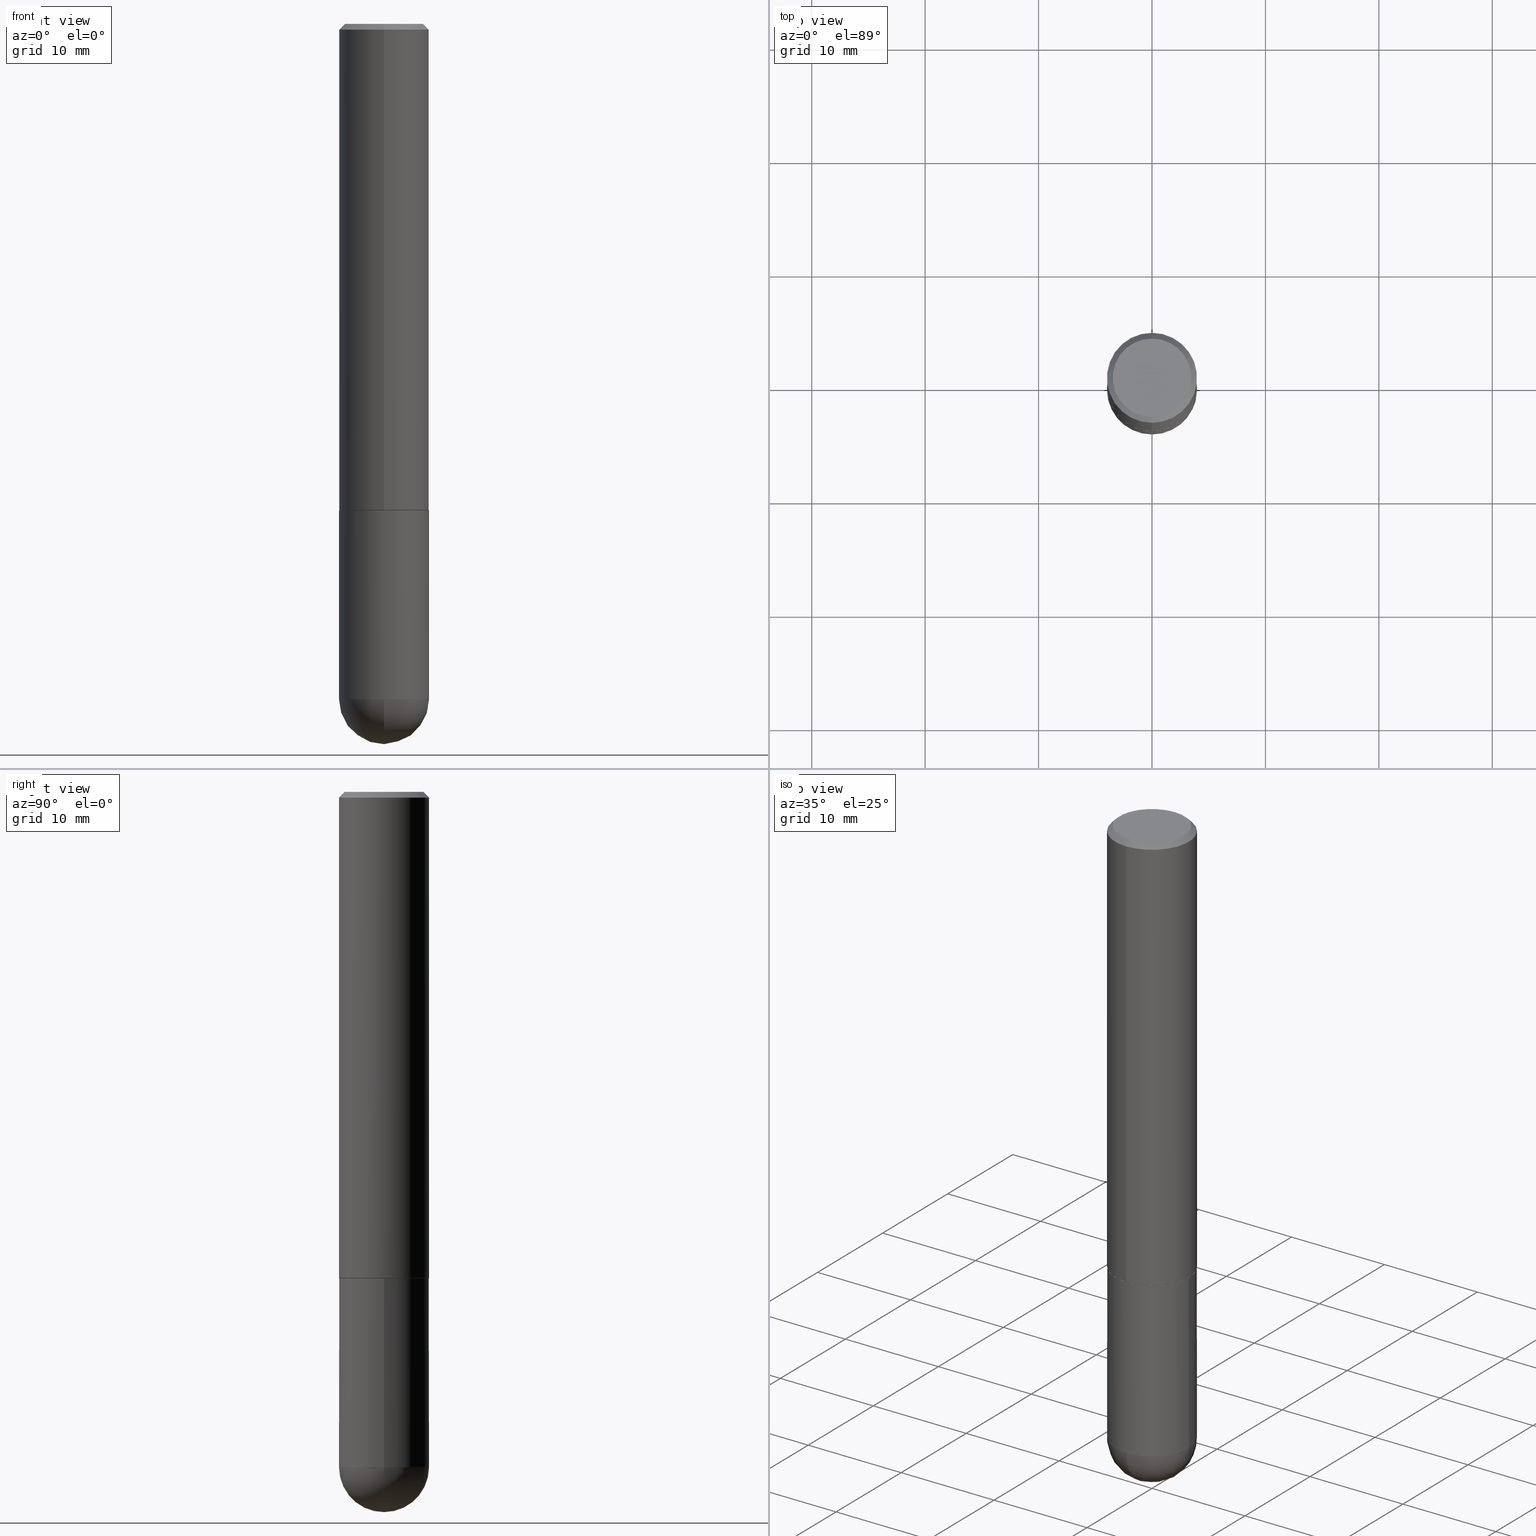
[diagram: canonical four-view strip — front | top / right | iso, engineering-drawing reading convention]
A machine part, canonical four-view strip (front | top / right | iso — engineering-drawing reading convention). The complete STEP part file that produces these views, byte-faithful:
ISO-10303-21;
HEADER;
FILE_DESCRIPTION (( 'STEP AP203' ),
    '1' );
FILE_NAME ('30924.STEP',
    '2024-02-21T16:45:22',
    ( '' ),
    ( '' ),
    'SwSTEP 2.0',
    'SolidWorks 2023',
    '' );
FILE_SCHEMA (( 'CONFIG_CONTROL_DESIGN' ));
ENDSEC;

DATA;
#1 = EDGE_CURVE ( 'NONE', #203, #116, #267, .T. ) ;
#2 = DIRECTION ( 'NONE',  ( -2.445468806185136597E-29, 3.491481338843145583E-15, 1.000000000000000000 ) ) ;
#3 = CIRCLE ( 'NONE', #174, 0.1362500000000000100 ) ;
#4 = CARTESIAN_POINT ( 'NONE',  ( 1.021258291611616664E-15, 0.1362500000000000100, -4.757143324173786552E-16 ) ) ;
#5 = COORDINATED_UNIVERSAL_TIME_OFFSET ( 5, 0, .BEHIND. ) ;
#6 = DIRECTION ( 'NONE',  ( -2.445468806185136597E-29, 3.491481338843145583E-15, 1.000000000000000000 ) ) ;
#7 = CC_DESIGN_PERSON_AND_ORGANIZATION_ASSIGNMENT ( #104, #73, ( #50 ) ) ;
#8 = CIRCLE ( 'NONE', #25, 0.1562500000000000000 ) ;
#9 = CIRCLE ( 'NONE', #289, 0.1562500000000000000 ) ;
#10 = CARTESIAN_POINT ( 'NONE',  ( 0.000000000000000000, 0.000000000000000000, 0.000000000000000000 ) ) ;
#11 = UNCERTAINTY_MEASURE_WITH_UNIT (LENGTH_MEASURE( 1.000000000000000082E-05 ), #247, 'distance_accuracy_value', 'NONE');
#12 = ORIENTED_EDGE ( 'NONE', *, *, #125, .F. ) ;
#13 = EDGE_CURVE ( 'NONE', #243, #410, #358, .T. ) ;
#14 = PERSON_AND_ORGANIZATION ( #80, #68 ) ;
#15 = DIRECTION ( 'NONE',  ( -4.937700262164884886E-15, -0.7071067811865933139, 0.7071067811865017205 ) ) ;
#16 = AXIS2_PLACEMENT_3D ( 'NONE', #124, #85, #236 ) ;
#17 = ORIENTED_EDGE ( 'NONE', *, *, #152, .T. ) ;
#18 = FACE_OUTER_BOUND ( 'NONE', #119, .T. ) ;
#19 = PLANE ( 'NONE',  #300 ) ;
#20 = DIRECTION ( 'NONE',  ( -6.982962677686265922E-15, -1.000000000000000000, 3.490603180776537104E-15 ) ) ;
#21 = ORIENTED_EDGE ( 'NONE', *, *, #79, .F. ) ;
#22 = CARTESIAN_POINT ( 'NONE',  ( 4.128986450917225387E-29, -5.892138169150795047E-15, -1.688000000000000167 ) ) ;
#23 = ORIENTED_EDGE ( 'NONE', *, *, #364, .F. ) ;
#24 = LINE ( 'NONE', #208, #281 ) ;
#25 = AXIS2_PLACEMENT_3D ( 'NONE', #101, #6, #225 ) ;
#26 = CLOSED_SHELL ( 'NONE', ( #173, #94, #70, #205, #132 ) ) ;
#27 = VERTEX_POINT ( 'NONE', #78 ) ;
#28 = CARTESIAN_POINT ( 'NONE',  ( 4.128986450917225387E-29, -5.892138169150795047E-15, -1.688000000000000167 ) ) ;
#29 = ORIENTED_EDGE ( 'NONE', *, *, #355, .T. ) ;
#30 = DIRECTION ( 'NONE',  ( -2.446082020685560042E-29, 3.490603180776537498E-15, 1.000000000000000000 ) ) ;
#31 = APPROVAL ( #256, 'UNSPECIFIED' ) ;
#32 = VERTEX_POINT ( 'NONE', #114 ) ;
#33 = CIRCLE ( 'NONE', #108, 0.1562500000000002220 ) ;
#34 = AXIS2_PLACEMENT_3D ( 'NONE', #179, #150, #242 ) ;
#35 = CIRCLE ( 'NONE', #405, 0.1562500000000002498 ) ;
#36 = DIRECTION ( 'NONE',  ( -2.446082020685560042E-29, 3.490603180776537498E-15, 1.000000000000000000 ) ) ;
#37 = DATE_AND_TIME ( #229, #392 ) ;
#38 = CARTESIAN_POINT ( 'NONE',  ( -0.1562500000000000000, 1.110223024625156540E-15, -7.685836078523291160E-30 ) ) ;
#39 = EDGE_CURVE ( 'NONE', #362, #221, #3, .T. ) ;
#40 = DIRECTION ( 'NONE',  ( 1.000000000000000000, 0.000000000000000000, 0.000000000000000000 ) ) ;
#41 = EDGE_LOOP ( 'NONE', ( #332, #65, #196, #207 ) ) ;
#42 = EDGE_CURVE ( 'NONE', #210, #27, #353, .T. ) ;
#43 = DIRECTION ( 'NONE',  ( -6.982962677686265922E-15, -1.000000000000000000, 3.490603180776537104E-15 ) ) ;
#44 = DIRECTION ( 'NONE',  ( -2.445468806185136597E-29, 3.491481338843145583E-15, 1.000000000000000000 ) ) ;
#45 = SECURITY_CLASSIFICATION ( '', '', #77 ) ;
#46 = AXIS2_PLACEMENT_3D ( 'NONE', #102, #193, #287 ) ;
#47 = EDGE_CURVE ( 'NONE', #221, #362, #361, .T. ) ;
#48 = ORIENTED_EDGE ( 'NONE', *, *, #79, .T. ) ;
#49 = CARTESIAN_POINT ( 'NONE',  ( 9.514286648347539576E-16, 0.1362500000000000100, -4.756545078990909690E-16 ) ) ;
#50 = PRODUCT ( '30924', '30924', '', ( #172 ) ) ;
#51 = CARTESIAN_POINT ( 'NONE',  ( -0.1562500000000000000, -5.928166919315269532E-15, -1.688000000000000167 ) ) ;
#52 = VECTOR ( 'NONE', #363, 39.37007874015748143 ) ;
#53 = CIRCLE ( 'NONE', #46, 0.1562500000000000000 ) ;
#54 = CARTESIAN_POINT ( 'NONE',  ( 1.091087918388479568E-15, 0.1562499999999999445, -0.02000000000000057981 ) ) ;
#55 = CARTESIAN_POINT ( 'NONE',  ( 4.126540368896540526E-29, -5.888647565970019255E-15, -1.687000000000000055 ) ) ;
#56 = EDGE_LOOP ( 'NONE', ( #346, #82, #17, #238 ) ) ;
#57 = DIRECTION ( 'NONE',  ( 2.446082020685559481E-29, -3.490603180776537498E-15, -1.000000000000000000 ) ) ;
#58 = EDGE_CURVE ( 'NONE', #221, #203, #301, .T. ) ;
#59 = EDGE_LOOP ( 'NONE', ( #178, #218, #313, #323, #21 ) ) ;
#60 = DIRECTION ( 'NONE',  ( -2.446082020685560042E-29, 3.490603180776537498E-15, 1.000000000000000000 ) ) ;
#61 = VERTEX_POINT ( 'NONE', #304 ) ;
#62 = CC_DESIGN_APPROVAL ( #106, ( #147 ) ) ;
#63 = ORIENTED_EDGE ( 'NONE', *, *, #360, .T. ) ;
#64 = DIRECTION ( 'NONE',  ( -2.446082020685560042E-29, 3.490603180776537498E-15, 1.000000000000000000 ) ) ;
#65 = ORIENTED_EDGE ( 'NONE', *, *, #258, .T. ) ;
#66 = CARTESIAN_POINT ( 'NONE',  ( 5.400447736582527652E-29, -8.657341756053672891E-15, -2.343750000000000000 ) ) ;
#67 = DIRECTION ( 'NONE',  ( 6.982962677686265922E-15, 1.000000000000000000, 0.000000000000000000 ) ) ;
#68 = ORGANIZATION ( 'UNSPECIFIED', 'UNSPECIFIED', '' ) ;
#69 = CARTESIAN_POINT ( 'NONE',  ( 1.110223024625157132E-15, 0.1562500000000001110, -5.454067469963343169E-16 ) ) ;
#70 = ADVANCED_FACE ( 'NONE', ( #374 ), #122, .T. ) ;
#71 = APPROVAL_DATE_TIME ( #383, #194 ) ;
#72 = DATE_AND_TIME ( #198, #226 ) ;
#73 = PERSON_AND_ORGANIZATION_ROLE ( 'design_owner' ) ;
#74 = ADVANCED_FACE ( 'NONE', ( #213 ), #340, .T. ) ;
#75 = VECTOR ( 'NONE', #115, 39.37007874015748143 ) ;
#76 = DIRECTION ( 'NONE',  ( -2.446082020685560042E-29, 3.490603180776537498E-15, 1.000000000000000000 ) ) ;
#77 = SECURITY_CLASSIFICATION_LEVEL ( 'unclassified' ) ;
#78 = CARTESIAN_POINT ( 'NONE',  ( 0.1562500000000000000, -8.129477862328905246E-15, -2.343750000000000000 ) ) ;
#79 = EDGE_CURVE ( 'NONE', #160, #403, #137, .T. ) ;
#80 = PERSON ( 'UNSPECIFIED', 'UNSPECIFIED', 'UNSPECIFIED', ('UNSPECIFIED'), ('UNSPECIFIED'), ('UNSPECIFIED') ) ;
#81 = VECTOR ( 'NONE', #30, 39.37007874015748143 ) ;
#82 = ORIENTED_EDGE ( 'NONE', *, *, #406, .T. ) ;
#83 = CYLINDRICAL_SURFACE ( 'NONE', #230, 0.1562500000000000000 ) ;
#84 = PRODUCT_DEFINITION_SHAPE ( 'NONE', 'NONE',  #147 ) ;
#85 = DIRECTION ( 'NONE',  ( -2.445468806185136597E-29, 3.491481338843145583E-15, 1.000000000000000000 ) ) ;
#86 = CONICAL_SURFACE ( 'NONE', #189, 0.1562500000000000000, 0.7853981633974472798 ) ;
#87 = EDGE_CURVE ( 'NONE', #403, #160, #9, .T. ) ;
#88 = ORIENTED_EDGE ( 'NONE', *, *, #58, .F. ) ;
#89 = DIRECTION ( 'NONE',  ( -6.982962677686265922E-15, -1.000000000000000000, 3.490603180776537498E-15 ) ) ;
#90 = AXIS2_PLACEMENT_3D ( 'NONE', #373, #117, #299 ) ;
#91 = ORIENTED_EDGE ( 'NONE', *, *, #385, .T. ) ;
#92 = ORIENTED_EDGE ( 'NONE', *, *, #379, .T. ) ;
#93 = CARTESIAN_POINT ( 'NONE',  ( 4.892164041371128702E-31, -6.981206361553086139E-17, -0.02000000000000003511 ) ) ;
#94 = ADVANCED_FACE ( 'NONE', ( #129 ), #241, .T. ) ;
#95 = ORIENTED_EDGE ( 'NONE', *, *, #199, .F. ) ;
#96 = LINE ( 'NONE', #349, #315 ) ;
#97 = VECTOR ( 'NONE', #15, 39.37007874015748143 ) ;
#98 = ORIENTED_EDGE ( 'NONE', *, *, #360, .F. ) ;
#99 = DIRECTION ( 'NONE',  ( 2.446082020685560042E-29, -3.490603180776537498E-15, -1.000000000000000000 ) ) ;
#100 = CARTESIAN_POINT ( 'NONE',  ( 4.127951344840510809E-29, -5.893620499967230340E-15, -1.688000000000000167 ) ) ;
#101 = CARTESIAN_POINT ( 'NONE',  ( 5.731567514496413899E-29, -8.183159387913622595E-15, -2.343750000000000000 ) ) ;
#102 = CARTESIAN_POINT ( 'NONE',  ( 5.731567514496413899E-29, -8.183159387913622595E-15, -2.343750000000000000 ) ) ;
#103 = ADVANCED_FACE ( 'NONE', ( #293 ), #170, .T. ) ;
#104 = PERSON_AND_ORGANIZATION ( #80, #68 ) ;
#105 = CIRCLE ( 'NONE', #282, 0.1562500000000002220 ) ;
#106 = APPROVAL ( #166, 'UNSPECIFIED' ) ;
#107 = COORDINATED_UNIVERSAL_TIME_OFFSET ( 5, 0, .BEHIND. ) ;
#108 = AXIS2_PLACEMENT_3D ( 'NONE', #128, #131, #380 ) ;
#109 = DIRECTION ( 'NONE',  ( 0.000000000000000000, 0.000000000000000000, 1.000000000000000000 ) ) ;
#110 = CARTESIAN_POINT ( 'NONE',  ( 2.926713571593621492E-48, -4.176473076468356444E-34, -1.196490365753702472E-19 ) ) ;
#111 = ADVANCED_FACE ( 'NONE', ( #148 ), #239, .T. ) ;
#112 = LINE ( 'NONE', #270, #52 ) ;
#113 = AXIS2_PLACEMENT_3D ( 'NONE', #394, #144, #202 ) ;
#114 = CARTESIAN_POINT ( 'NONE',  ( -0.1562500000000000000, -5.928166919315270321E-15, -2.343750000000000000 ) ) ;
#115 = DIRECTION ( 'NONE',  ( -2.446082020685560042E-29, 3.490603180776537498E-15, 1.000000000000000000 ) ) ;
#116 = VERTEX_POINT ( 'NONE', #211 ) ;
#117 = DIRECTION ( 'NONE',  ( -2.445468806185136597E-29, 3.491481338843145583E-15, 1.000000000000000000 ) ) ;
#118 = VECTOR ( 'NONE', #378, 39.37007874015748143 ) ;
#119 = EDGE_LOOP ( 'NONE', ( #296, #48 ) ) ;
#120 = FACE_OUTER_BOUND ( 'NONE', #59, .T. ) ;
#121 = LOCAL_TIME ( 11, 45, 22.00000000000000000, #107 ) ;
#122 = SPHERICAL_SURFACE ( 'NONE', #34, 0.1562500000000002498 ) ;
#123 = ORIENTED_EDGE ( 'NONE', *, *, #47, .F. ) ;
#124 = CARTESIAN_POINT ( 'NONE',  ( 5.731567514496413899E-29, -8.183159387913622595E-15, -2.343750000000000000 ) ) ;
#125 = EDGE_CURVE ( 'NONE', #248, #61, #112, .T. ) ;
#126 = EDGE_LOOP ( 'NONE', ( #369, #330 ) ) ;
#127 = ORIENTED_EDGE ( 'NONE', *, *, #285, .F. ) ;
#128 = CARTESIAN_POINT ( 'NONE',  ( 4.126540368896540526E-29, -5.888647565970019255E-15, -1.687000000000000055 ) ) ;
#129 = FACE_OUTER_BOUND ( 'NONE', #372, .T. ) ;
#130 =( NAMED_UNIT ( * ) PLANE_ANGLE_UNIT ( ) SI_UNIT ( $, .RADIAN. ) );
#131 = DIRECTION ( 'NONE',  ( -2.446082020685560042E-29, 3.490603180776537498E-15, 1.000000000000000000 ) ) ;
#132 = ADVANCED_FACE ( 'NONE', ( #120 ), #268, .T. ) ;
#133 = DIRECTION ( 'NONE',  ( -7.105427357601000281E-15, -1.000000000000000000, 0.000000000000000000 ) ) ;
#134 = PERSON_AND_ORGANIZATION ( #80, #68 ) ;
#135 = FACE_OUTER_BOUND ( 'NONE', #375, .T. ) ;
#136 = APPLICATION_PROTOCOL_DEFINITION ( 'international standard', 'config_control_design', 1994, #274 ) ;
#137 = CIRCLE ( 'NONE', #321, 0.1562500000000000000 ) ;
#138 = CALENDAR_DATE ( 2024, 21, 2 ) ;
#139 = APPROVAL_ROLE ( '' ) ;
#140 = DIRECTION ( 'NONE',  ( -2.446082020685560042E-29, 3.490603180776537498E-15, 1.000000000000000000 ) ) ;
#141 =( GEOMETRIC_REPRESENTATION_CONTEXT ( 3 ) GLOBAL_UNCERTAINTY_ASSIGNED_CONTEXT ( ( #11 ) ) GLOBAL_UNIT_ASSIGNED_CONTEXT ( ( #247, #130, #164 ) ) REPRESENTATION_CONTEXT ( 'NONE', 'WORKASPACE' ) );
#142 = CARTESIAN_POINT ( 'NONE',  ( 5.731567514496413899E-29, -8.183159387913622595E-15, -2.343750000000000000 ) ) ;
#143 = CARTESIAN_POINT ( 'NONE',  ( 1.091087918388520392E-15, 0.1562499999999940881, -1.688000000000000611 ) ) ;
#144 = DIRECTION ( 'NONE',  ( -2.446082020685560042E-29, 3.490603180776537498E-15, 1.000000000000000000 ) ) ;
#145 = CARTESIAN_POINT ( 'NONE',  ( 4.128986450917225387E-29, -5.892138169150795047E-15, -1.688000000000000167 ) ) ;
#146 = VECTOR ( 'NONE', #159, 39.37007874015748143 ) ;
#147 = PRODUCT_DEFINITION ( 'UNKNOWN', '', #153, #233 ) ;
#148 = FACE_OUTER_BOUND ( 'NONE', #56, .T. ) ;
#149 = ORIENTED_EDGE ( 'NONE', *, *, #216, .F. ) ;
#150 = DIRECTION ( 'NONE',  ( -1.000000000000000000, 6.982962677686265922E-15, -4.883557194083112340E-29 ) ) ;
#151 = APPLICATION_PROTOCOL_DEFINITION ( 'international standard', 'config_control_design', 1994, #298 ) ;
#152 = EDGE_CURVE ( 'NONE', #410, #116, #402, .T. ) ;
#153 = PRODUCT_DEFINITION_FORMATION_WITH_SPECIFIED_SOURCE ( 'ANY', '', #50, .NOT_KNOWN. ) ;
#154 = MANIFOLD_SOLID_BREP ( 'Body-Move/Copy2[2]', #326 ) ;
#155 = PLANE ( 'NONE',  #316 ) ;
#156 = AXIS2_PLACEMENT_3D ( 'NONE', #371, #76, #43 ) ;
#157 = ORIENTED_EDGE ( 'NONE', *, *, #379, .F. ) ;
#158 = CARTESIAN_POINT ( 'NONE',  ( -1.003347832174086081E-15, -0.1362500000000000100, 4.754750343442279107E-16 ) ) ;
#159 = DIRECTION ( 'NONE',  ( 4.937700262164542520E-15, 0.7071067811865443531, -0.7071067811865506814 ) ) ;
#160 = VERTEX_POINT ( 'NONE', #51 ) ;
#161 = CARTESIAN_POINT ( 'NONE',  ( 1.106670310946397649E-15, 0.1552499999999940872, -1.688000000000000611 ) ) ;
#162 = AXIS2_PLACEMENT_3D ( 'NONE', #177, #246, #345 ) ;
#163 = CC_DESIGN_APPROVAL ( #31, ( #153 ) ) ;
#164 =( NAMED_UNIT ( * ) SI_UNIT ( $, .STERADIAN. ) SOLID_ANGLE_UNIT ( ) );
#165 = DIRECTION ( 'NONE',  ( 6.982962677686265133E-15, 1.000000000000000000, -3.496765431890256920E-15 ) ) ;
#166 = APPROVAL_STATUS ( 'not_yet_approved' ) ;
#167 = CARTESIAN_POINT ( 'NONE',  ( 4.892164041371128702E-31, -6.981206361553086139E-17, -0.02000000000000003511 ) ) ;
#168 = APPROVAL_DATE_TIME ( #227, #106 ) ;
#169 = APPROVAL_STATUS ( 'not_yet_approved' ) ;
#170 = CONICAL_SURFACE ( 'NONE', #197, 0.1552499999999999991, 0.7853981633975165577 ) ;
#171 = CARTESIAN_POINT ( 'NONE',  ( 2.926713571593621492E-48, -4.176473076468356444E-34, -1.196490365753702472E-19 ) ) ;
#172 = MECHANICAL_CONTEXT ( 'NONE', #298, 'mechanical' ) ;
#173 = ADVANCED_FACE ( 'NONE', ( #181 ), #83, .T. ) ;
#174 = AXIS2_PLACEMENT_3D ( 'NONE', #171, #140, #324 ) ;
#175 = DIRECTION ( 'NONE',  ( -2.446082020685560042E-29, 3.490603180776537498E-15, 1.000000000000000000 ) ) ;
#176 = ADVANCED_FACE ( 'NONE', ( #237 ), #19, .F. ) ;
#177 = CARTESIAN_POINT ( 'NONE',  ( 4.128986450917225387E-29, -5.892138169150795047E-15, -1.688000000000000167 ) ) ;
#178 = ORIENTED_EDGE ( 'NONE', *, *, #385, .F. ) ;
#179 = CARTESIAN_POINT ( 'NONE',  ( 5.400447736582527652E-29, -8.657341756053672891E-15, -2.343750000000000000 ) ) ;
#180 = ORIENTED_EDGE ( 'NONE', *, *, #87, .F. ) ;
#181 = FACE_OUTER_BOUND ( 'NONE', #240, .T. ) ;
#182 = ADVANCED_FACE ( 'NONE', ( #307 ), #155, .F. ) ;
#183 = DIRECTION ( 'NONE',  ( -6.982962677686265922E-15, -1.000000000000000000, 3.496765431890251792E-15 ) ) ;
#184 = ORIENTED_EDGE ( 'NONE', *, *, #42, .F. ) ;
#185 = EDGE_LOOP ( 'NONE', ( #12, #377, #359, #217 ) ) ;
#186 = EDGE_LOOP ( 'NONE', ( #310, #63, #127, #184 ) ) ;
#187 = DIRECTION ( 'NONE',  ( 2.446082020685560042E-29, -3.490603180776537498E-15, -1.000000000000000000 ) ) ;
#188 = DIRECTION ( 'NONE',  ( -1.000000000000000000, 7.105427357601001070E-15, -4.926315508542082329E-29 ) ) ;
#189 = AXIS2_PLACEMENT_3D ( 'NONE', #93, #187, #165 ) ;
#190 = CIRCLE ( 'NONE', #16, 0.1562500000000000000 ) ;
#191 = CC_DESIGN_SECURITY_CLASSIFICATION ( #45, ( #153 ) ) ;
#192 = CARTESIAN_POINT ( 'NONE',  ( -1.091087918388439336E-15, -0.1562500000000060785, -1.686999999999999611 ) ) ;
#193 = DIRECTION ( 'NONE',  ( -2.445468806185136597E-29, 3.491481338843145583E-15, 1.000000000000000000 ) ) ;
#194 = APPROVAL ( #169, 'UNSPECIFIED' ) ;
#195 = APPROVAL_ROLE ( '' ) ;
#196 = ORIENTED_EDGE ( 'NONE', *, *, #355, .F. ) ;
#197 = AXIS2_PLACEMENT_3D ( 'NONE', #22, #175, #302 ) ;
#198 = CALENDAR_DATE ( 2024, 21, 2 ) ;
#199 = EDGE_CURVE ( 'NONE', #27, #403, #24, .T. ) ;
#200 = COORDINATED_UNIVERSAL_TIME_OFFSET ( 5, 0, .BEHIND. ) ;
#201 = LOCAL_TIME ( 11, 45, 22.00000000000000000, #253 ) ;
#202 = DIRECTION ( 'NONE',  ( -6.982962677686265133E-15, -1.000000000000000000, 3.496765431890256920E-15 ) ) ;
#203 = VERTEX_POINT ( 'NONE', #206 ) ;
#204 = CARTESIAN_POINT ( 'NONE',  ( 0.000000000000000000, 0.000000000000000000, 0.000000000000000000 ) ) ;
#205 = ADVANCED_FACE ( 'NONE', ( #18 ), #276, .F. ) ;
#206 = CARTESIAN_POINT ( 'NONE',  ( 1.091087918388479568E-15, 0.1562499999999999445, -0.02000000000000057981 ) ) ;
#207 = ORIENTED_EDGE ( 'NONE', *, *, #152, .F. ) ;
#208 = CARTESIAN_POINT ( 'NONE',  ( 0.1562500000000000000, -1.091087918388479174E-15, 7.619026212181150377E-30 ) ) ;
#209 = AXIS2_PLACEMENT_3D ( 'NONE', #10, #109, #40 ) ;
#210 = VERTEX_POINT ( 'NONE', #408 ) ;
#211 = CARTESIAN_POINT ( 'NONE',  ( -1.071952812151801215E-15, -0.1562500000000000833, -0.01999999999999948694 ) ) ;
#212 = CC_DESIGN_APPROVAL ( #194, ( #45 ) ) ;
#213 = FACE_OUTER_BOUND ( 'NONE', #41, .T. ) ;
#214 = ORIENTED_EDGE ( 'NONE', *, *, #277, .T. ) ;
#215 = DIRECTION ( 'NONE',  ( 1.000000000000000000, -6.982962677686266711E-15, 4.876176775795936353E-29 ) ) ;
#216 = EDGE_CURVE ( 'NONE', #381, #32, #190, .T. ) ;
#217 = ORIENTED_EDGE ( 'NONE', *, *, #406, .F. ) ;
#218 = ORIENTED_EDGE ( 'NONE', *, *, #364, .T. ) ;
#219 = DIRECTION ( 'NONE',  ( 1.000000000000000000, -6.982962677686265922E-15, 4.883557194083112340E-29 ) ) ;
#220 = EDGE_CURVE ( 'NONE', #248, #243, #261, .T. ) ;
#221 = VERTEX_POINT ( 'NONE', #4 ) ;
#222 = DIRECTION ( 'NONE',  ( -2.446082020685560042E-29, 3.490603180776537498E-15, 1.000000000000000000 ) ) ;
#223 =( LENGTH_UNIT ( ) NAMED_UNIT ( * ) SI_UNIT ( $, .METRE. ) );
#224 = DIRECTION ( 'NONE',  ( -2.446082020685560042E-29, 3.490603180776537498E-15, 1.000000000000000000 ) ) ;
#225 = DIRECTION ( 'NONE',  ( 1.000000000000000000, -6.982962677686262766E-15, 0.000000000000000000 ) ) ;
#226 = LOCAL_TIME ( 11, 45, 22.00000000000000000, #200 ) ;
#227 = DATE_AND_TIME ( #234, #121 ) ;
#228 = DATE_TIME_ROLE ( 'creation_date' ) ;
#229 = CALENDAR_DATE ( 2024, 21, 2 ) ;
#230 = AXIS2_PLACEMENT_3D ( 'NONE', #204, #370, #215 ) ;
#231 = PERSON_AND_ORGANIZATION_ROLE ( 'creator' ) ;
#232 = CIRCLE ( 'NONE', #308, 0.1562500000000002498 ) ;
#233 = DESIGN_CONTEXT ( 'detailed design', #274, 'design' ) ;
#234 = CALENDAR_DATE ( 2024, 21, 2 ) ;
#235 = CIRCLE ( 'NONE', #254, 0.1562500000000000000 ) ;
#236 = DIRECTION ( 'NONE',  ( 1.000000000000000000, -6.982962677686262766E-15, 0.000000000000000000 ) ) ;
#237 = FACE_OUTER_BOUND ( 'NONE', #126, .T. ) ;
#238 = ORIENTED_EDGE ( 'NONE', *, *, #1, .F. ) ;
#239 = CYLINDRICAL_SURFACE ( 'NONE', #398, 0.1562500000000001110 ) ;
#240 = EDGE_LOOP ( 'NONE', ( #411, #91, #180, #95, #341 ) ) ;
#241 = SPHERICAL_SURFACE ( 'NONE', #343, 0.1562500000000002498 ) ;
#242 = DIRECTION ( 'NONE',  ( 6.982962677686265922E-15, 1.000000000000000000, -3.496765431890251398E-15 ) ) ;
#243 = VERTEX_POINT ( 'NONE', #283 ) ;
#244 = DIRECTION ( 'NONE',  ( 6.982962677686265922E-15, 1.000000000000000000, -3.496765431890251398E-15 ) ) ;
#245 = EDGE_LOOP ( 'NONE', ( #344, #286, #338, #401 ) ) ;
#246 = DIRECTION ( 'NONE',  ( -2.446082020685560042E-29, 3.490603180776537498E-15, 1.000000000000000000 ) ) ;
#247 =( CONVERSION_BASED_UNIT ( 'INCH', #348 ) LENGTH_UNIT ( ) NAMED_UNIT ( #251 ) );
#248 = VERTEX_POINT ( 'NONE', #161 ) ;
#249 = DIRECTION ( 'NONE',  ( -4.851104656540958753E-15, -0.7071067811865492381, -0.7071067811865457964 ) ) ;
#250 = DIRECTION ( 'NONE',  ( -6.982962677686265922E-15, -1.000000000000000000, 3.519288880726909138E-15 ) ) ;
#251 = DIMENSIONAL_EXPONENTS ( 1.000000000000000000, 0.000000000000000000, 0.000000000000000000, 0.000000000000000000, 0.000000000000000000, 0.000000000000000000, 0.000000000000000000 ) ;
#252 = DIRECTION ( 'NONE',  ( -6.982962677686265133E-15, -1.000000000000000000, 3.496765431890256920E-15 ) ) ;
#253 = COORDINATED_UNIVERSAL_TIME_OFFSET ( 5, 0, .BEHIND. ) ;
#254 = AXIS2_PLACEMENT_3D ( 'NONE', #376, #224, #252 ) ;
#255 = ADVANCED_FACE ( 'NONE', ( #135 ), #390, .T. ) ;
#256 = APPROVAL_STATUS ( 'not_yet_approved' ) ;
#257 = APPROVAL_ROLE ( '' ) ;
#258 = EDGE_CURVE ( 'NONE', #61, #203, #352, .T. ) ;
#259 = PERSON_AND_ORGANIZATION ( #80, #68 ) ;
#260 = AXIS2_PLACEMENT_3D ( 'NONE', #167, #99, #412 ) ;
#261 = CIRCLE ( 'NONE', #162, 0.1552499999999999991 ) ;
#262 = CARTESIAN_POINT ( 'NONE',  ( 4.127951344840510809E-29, -5.893620499967230340E-15, -1.688000000000000167 ) ) ;
#263 = DIRECTION ( 'NONE',  ( -2.445468806185136597E-29, 3.491481338843145583E-15, 1.000000000000000000 ) ) ;
#264 = CARTESIAN_POINT ( 'NONE',  ( 0.1562500000000000000, -6.984708418355709513E-15, -1.688000000000000167 ) ) ;
#265 = CC_DESIGN_DATE_AND_TIME_ASSIGNMENT ( #37, #284, ( #45 ) ) ;
#266 = DIRECTION ( 'NONE',  ( -1.000000000000000000, 6.982962677686265922E-15, -4.876176775795935793E-29 ) ) ;
#267 = CIRCLE ( 'NONE', #113, 0.1562500000000000000 ) ;
#268 = CYLINDRICAL_SURFACE ( 'NONE', #90, 0.1562500000000000000 ) ;
#269 = EDGE_LOOP ( 'NONE', ( #157, #123, #305, #407 ) ) ;
#270 = CARTESIAN_POINT ( 'NONE',  ( 1.103117597267596553E-15, 0.1552499999999940872, -1.688000000000000611 ) ) ;
#271 = CC_DESIGN_PERSON_AND_ORGANIZATION_ASSIGNMENT ( #389, #393, ( #147 ) ) ;
#272 = VERTEX_POINT ( 'NONE', #342 ) ;
#273 = CARTESIAN_POINT ( 'NONE',  ( 0.000000000000000000, 0.000000000000000000, 0.000000000000000000 ) ) ;
#274 = APPLICATION_CONTEXT ( 'configuration controlled 3d designs of mechanical parts and assemblies' ) ;
#275 = AXIS2_PLACEMENT_3D ( 'NONE', #110, #329, #409 ) ;
#276 = PLANE ( 'NONE',  #368 ) ;
#277 = EDGE_CURVE ( 'NONE', #272, #210, #35, .T. ) ;
#278 = ORIENTED_EDGE ( 'NONE', *, *, #39, .T. ) ;
#279 = FACE_OUTER_BOUND ( 'NONE', #269, .T. ) ;
#280 = FACE_OUTER_BOUND ( 'NONE', #185, .T. ) ;
#281 = VECTOR ( 'NONE', #365, 39.37007874015748143 ) ;
#282 = AXIS2_PLACEMENT_3D ( 'NONE', #55, #64, #183 ) ;
#283 = CARTESIAN_POINT ( 'NONE',  ( -1.084104955710751547E-15, -0.1552500000000059110, -1.687999999999999501 ) ) ;
#284 = DATE_TIME_ROLE ( 'classification_date' ) ;
#285 = EDGE_CURVE ( 'NONE', #27, #381, #8, .T. ) ;
#286 = ORIENTED_EDGE ( 'NONE', *, *, #125, .T. ) ;
#287 = DIRECTION ( 'NONE',  ( 1.000000000000000000, -6.982962677686262766E-15, 0.000000000000000000 ) ) ;
#288 = SHAPE_DEFINITION_REPRESENTATION ( #84, #297 ) ;
#289 = AXIS2_PLACEMENT_3D ( 'NONE', #262, #2, #387 ) ;
#290 = PERSON_AND_ORGANIZATION_ROLE ( 'classification_officer' ) ;
#291 = MANIFOLD_SOLID_BREP ( 'Body-Move/Copy2[1]', #26 ) ;
#292 = EDGE_CURVE ( 'NONE', #243, #248, #367, .T. ) ;
#293 = FACE_OUTER_BOUND ( 'NONE', #245, .T. ) ;
#294 = CONICAL_SURFACE ( 'NONE', #328, 0.1552499999999999991, 0.7853981633975165577 ) ;
#295 = DIRECTION ( 'NONE',  ( 1.000000000000000000, -6.982962677686269077E-15, 0.000000000000000000 ) ) ;
#296 = ORIENTED_EDGE ( 'NONE', *, *, #87, .T. ) ;
#297 = ADVANCED_BREP_SHAPE_REPRESENTATION ( '30924', ( #291, #154, #209 ), #141 ) ;
#298 = APPLICATION_CONTEXT ( 'configuration controlled 3d designs of mechanical parts and assemblies' ) ;
#299 = DIRECTION ( 'NONE',  ( 1.000000000000000000, -6.982962677686266711E-15, 4.876176775795936353E-29 ) ) ;
#300 = AXIS2_PLACEMENT_3D ( 'NONE', #145, #366, #89 ) ;
#301 = LINE ( 'NONE', #54, #146 ) ;
#302 = DIRECTION ( 'NONE',  ( -6.982962677686265922E-15, -1.000000000000000000, 3.519288880726909138E-15 ) ) ;
#303 = ADVANCED_FACE ( 'NONE', ( #279 ), #86, .T. ) ;
#304 = CARTESIAN_POINT ( 'NONE',  ( 1.110223024625178431E-15, 0.1562499999999943379, -1.687000000000000499 ) ) ;
#305 = ORIENTED_EDGE ( 'NONE', *, *, #58, .T. ) ;
#306 = ORIENTED_EDGE ( 'NONE', *, *, #39, .F. ) ;
#307 = FACE_OUTER_BOUND ( 'NONE', #312, .T. ) ;
#308 = AXIS2_PLACEMENT_3D ( 'NONE', #66, #219, #67 ) ;
#309 = PRODUCT_RELATED_PRODUCT_CATEGORY ( 'detail', '', ( #50 ) ) ;
#310 = ORIENTED_EDGE ( 'NONE', *, *, #277, .F. ) ;
#311 = CARTESIAN_POINT ( 'NONE',  ( 5.400447736582527652E-29, -8.657341756053672891E-15, -2.343750000000000000 ) ) ;
#312 = EDGE_LOOP ( 'NONE', ( #337, #278 ) ) ;
#313 = ORIENTED_EDGE ( 'NONE', *, *, #42, .T. ) ;
#314 = LINE ( 'NONE', #38, #118 ) ;
#315 = VECTOR ( 'NONE', #249, 39.37007874015748143 ) ;
#316 = AXIS2_PLACEMENT_3D ( 'NONE', #49, #57, #333 ) ;
#317 = CC_DESIGN_PERSON_AND_ORGANIZATION_ASSIGNMENT ( #388, #357, ( #153 ) ) ;
#318 = CARTESIAN_POINT ( 'NONE',  ( 1.091087918388535577E-15, 0.1562499999999916733, -2.343750000000000444 ) ) ;
#319 = CALENDAR_DATE ( 2024, 21, 2 ) ;
#320 = PERSON_AND_ORGANIZATION ( #80, #68 ) ;
#321 = AXIS2_PLACEMENT_3D ( 'NONE', #100, #44, #295 ) ;
#322 = APPROVAL_DATE_TIME ( #72, #31 ) ;
#323 = ORIENTED_EDGE ( 'NONE', *, *, #199, .T. ) ;
#324 = DIRECTION ( 'NONE',  ( -6.982962677686266711E-15, -1.000000000000000000, 3.490603180776537498E-15 ) ) ;
#325 = AXIS2_PLACEMENT_3D ( 'NONE', #28, #36, #250 ) ;
#326 = CLOSED_SHELL ( 'NONE', ( #103, #74, #255, #303, #111, #327, #176, #182 ) ) ;
#327 = ADVANCED_FACE ( 'NONE', ( #280 ), #294, .T. ) ;
#328 = AXIS2_PLACEMENT_3D ( 'NONE', #382, #222, #347 ) ;
#329 = DIRECTION ( 'NONE',  ( -2.446082020685560042E-29, 3.490603180776537498E-15, 1.000000000000000000 ) ) ;
#330 = ORIENTED_EDGE ( 'NONE', *, *, #220, .F. ) ;
#331 = CARTESIAN_POINT ( 'NONE',  ( 5.400447736582527652E-29, -8.657341756053672891E-15, -2.343750000000000000 ) ) ;
#332 = ORIENTED_EDGE ( 'NONE', *, *, #350, .T. ) ;
#333 = DIRECTION ( 'NONE',  ( 6.982962677686265922E-15, 1.000000000000000000, -3.490603180776537498E-15 ) ) ;
#334 = CC_DESIGN_PERSON_AND_ORGANIZATION_ASSIGNMENT ( #14, #231, ( #153 ) ) ;
#335 = DIRECTION ( 'NONE',  ( 2.438088387897960049E-29, -3.491481338843145188E-15, -1.000000000000000000 ) ) ;
#336 = APPROVAL_PERSON_ORGANIZATION ( #320, #31, #195 ) ;
#337 = ORIENTED_EDGE ( 'NONE', *, *, #47, .T. ) ;
#338 = ORIENTED_EDGE ( 'NONE', *, *, #350, .F. ) ;
#339 = CC_DESIGN_PERSON_AND_ORGANIZATION_ASSIGNMENT ( #134, #290, ( #45 ) ) ;
#340 = CYLINDRICAL_SURFACE ( 'NONE', #156, 0.1562500000000001110 ) ;
#341 = ORIENTED_EDGE ( 'NONE', *, *, #285, .T. ) ;
#342 = CARTESIAN_POINT ( 'NONE',  ( 5.789233224183170584E-29, -9.193318162129576161E-15, -2.500000000000000000 ) ) ;
#343 = AXIS2_PLACEMENT_3D ( 'NONE', #331, #400, #244 ) ;
#344 = ORIENTED_EDGE ( 'NONE', *, *, #292, .T. ) ;
#345 = DIRECTION ( 'NONE',  ( -6.982962677686265922E-15, -1.000000000000000000, 3.519288880726909138E-15 ) ) ;
#346 = ORIENTED_EDGE ( 'NONE', *, *, #258, .F. ) ;
#347 = DIRECTION ( 'NONE',  ( -6.982962677686265922E-15, -1.000000000000000000, 3.519288880726909138E-15 ) ) ;
#348 = LENGTH_MEASURE_WITH_UNIT ( LENGTH_MEASURE( 0.02539999999999999897 ), #223 );
#349 = CARTESIAN_POINT ( 'NONE',  ( -1.071952812151801215E-15, -0.1562500000000000833, -0.01999999999999948694 ) ) ;
#350 = EDGE_CURVE ( 'NONE', #410, #61, #33, .T. ) ;
#351 = APPROVAL_PERSON_ORGANIZATION ( #259, #106, #139 ) ;
#352 = LINE ( 'NONE', #69, #81 ) ;
#353 = CIRCLE ( 'NONE', #391, 0.1562500000000000000 ) ;
#354 = PERSON_AND_ORGANIZATION ( #80, #68 ) ;
#355 = EDGE_CURVE ( 'NONE', #116, #203, #235, .T. ) ;
#356 = COORDINATED_UNIVERSAL_TIME_OFFSET ( 5, 0, .BEHIND. ) ;
#357 = PERSON_AND_ORGANIZATION_ROLE ( 'design_supplier' ) ;
#358 = LINE ( 'NONE', #399, #97 ) ;
#359 = ORIENTED_EDGE ( 'NONE', *, *, #13, .T. ) ;
#360 = EDGE_CURVE ( 'NONE', #272, #381, #232, .T. ) ;
#361 = CIRCLE ( 'NONE', #275, 0.1362500000000000100 ) ;
#362 = VERTEX_POINT ( 'NONE', #158 ) ;
#363 = DIRECTION ( 'NONE',  ( 5.024295867788404755E-15, 0.7071067811865981989, 0.7071067811864968355 ) ) ;
#364 = EDGE_CURVE ( 'NONE', #32, #210, #53, .T. ) ;
#365 = DIRECTION ( 'NONE',  ( -2.445468806185136877E-29, 3.491481338843145188E-15, 1.000000000000000000 ) ) ;
#366 = DIRECTION ( 'NONE',  ( -2.446082020685559481E-29, 3.490603180776537498E-15, 1.000000000000000000 ) ) ;
#367 = CIRCLE ( 'NONE', #325, 0.1552499999999999991 ) ;
#368 = AXIS2_PLACEMENT_3D ( 'NONE', #143, #335, #266 ) ;
#369 = ORIENTED_EDGE ( 'NONE', *, *, #292, .F. ) ;
#370 = DIRECTION ( 'NONE',  ( -2.445468806185136597E-29, 3.491481338843145583E-15, 1.000000000000000000 ) ) ;
#371 = CARTESIAN_POINT ( 'NONE',  ( 0.000000000000000000, 0.000000000000000000, 0.000000000000000000 ) ) ;
#372 = EDGE_LOOP ( 'NONE', ( #98, #214, #23, #149 ) ) ;
#373 = CARTESIAN_POINT ( 'NONE',  ( 0.000000000000000000, 0.000000000000000000, 0.000000000000000000 ) ) ;
#374 = FACE_OUTER_BOUND ( 'NONE', #186, .T. ) ;
#375 = EDGE_LOOP ( 'NONE', ( #306, #92, #29, #88 ) ) ;
#376 = CARTESIAN_POINT ( 'NONE',  ( 4.892164041371128702E-31, -6.981206361553086139E-17, -0.02000000000000003511 ) ) ;
#377 = ORIENTED_EDGE ( 'NONE', *, *, #220, .T. ) ;
#378 = DIRECTION ( 'NONE',  ( -2.445468806185136877E-29, 3.491481338843145188E-15, 1.000000000000000000 ) ) ;
#379 = EDGE_CURVE ( 'NONE', #362, #116, #96, .T. ) ;
#380 = DIRECTION ( 'NONE',  ( -6.982962677686265922E-15, -1.000000000000000000, 3.496765431890251792E-15 ) ) ;
#381 = VERTEX_POINT ( 'NONE', #318 ) ;
#382 = CARTESIAN_POINT ( 'NONE',  ( 4.128986450917225387E-29, -5.892138169150795047E-15, -1.688000000000000167 ) ) ;
#383 = DATE_AND_TIME ( #319, #201 ) ;
#384 = APPROVAL_PERSON_ORGANIZATION ( #354, #194, #257 ) ;
#385 = EDGE_CURVE ( 'NONE', #32, #160, #314, .T. ) ;
#386 = DATE_AND_TIME ( #138, #404 ) ;
#387 = DIRECTION ( 'NONE',  ( 1.000000000000000000, -6.982962677686269077E-15, 0.000000000000000000 ) ) ;
#388 = PERSON_AND_ORGANIZATION ( #80, #68 ) ;
#389 = PERSON_AND_ORGANIZATION ( #80, #68 ) ;
#390 = CONICAL_SURFACE ( 'NONE', #260, 0.1562500000000000000, 0.7853981633974472798 ) ;
#391 = AXIS2_PLACEMENT_3D ( 'NONE', #142, #263, #396 ) ;
#392 = LOCAL_TIME ( 11, 45, 22.00000000000000000, #356 ) ;
#393 = PERSON_AND_ORGANIZATION_ROLE ( 'creator' ) ;
#394 = CARTESIAN_POINT ( 'NONE',  ( 4.892164041371128702E-31, -6.981206361553086139E-17, -0.02000000000000003511 ) ) ;
#395 = CC_DESIGN_DATE_AND_TIME_ASSIGNMENT ( #386, #228, ( #147 ) ) ;
#396 = DIRECTION ( 'NONE',  ( 1.000000000000000000, -6.982962677686262766E-15, 0.000000000000000000 ) ) ;
#397 = CARTESIAN_POINT ( 'NONE',  ( -1.091087918388479765E-15, -0.1562500000000001110, 5.454067469963343169E-16 ) ) ;
#398 = AXIS2_PLACEMENT_3D ( 'NONE', #273, #60, #20 ) ;
#399 = CARTESIAN_POINT ( 'NONE',  ( -1.084104955710751547E-15, -0.1552500000000059110, -1.687999999999999501 ) ) ;
#400 = DIRECTION ( 'NONE',  ( -1.000000000000000000, 6.982962677686265922E-15, -4.883557194083112340E-29 ) ) ;
#401 = ORIENTED_EDGE ( 'NONE', *, *, #13, .F. ) ;
#402 = LINE ( 'NONE', #397, #75 ) ;
#403 = VERTEX_POINT ( 'NONE', #264 ) ;
#404 = LOCAL_TIME ( 11, 45, 22.00000000000000000, #5 ) ;
#405 = AXIS2_PLACEMENT_3D ( 'NONE', #311, #188, #133 ) ;
#406 = EDGE_CURVE ( 'NONE', #61, #410, #105, .T. ) ;
#407 = ORIENTED_EDGE ( 'NONE', *, *, #1, .T. ) ;
#408 = CARTESIAN_POINT ( 'NONE',  ( -1.110223024625101517E-15, -0.1562500000000085487, -2.343749999999999556 ) ) ;
#409 = DIRECTION ( 'NONE',  ( -6.982962677686266711E-15, -1.000000000000000000, 3.490603180776537498E-15 ) ) ;
#410 = VERTEX_POINT ( 'NONE', #192 ) ;
#411 = ORIENTED_EDGE ( 'NONE', *, *, #216, .T. ) ;
#412 = DIRECTION ( 'NONE',  ( 6.982962677686265133E-15, 1.000000000000000000, -3.496765431890256920E-15 ) ) ;
ENDSEC;
END-ISO-10303-21;
